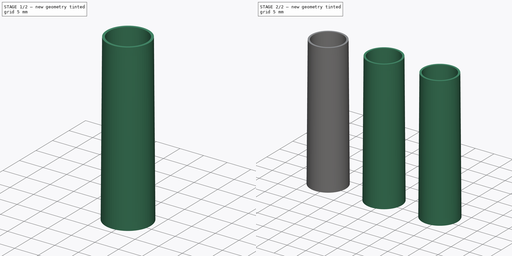
[diagram: build sequence overview — one tinted view per stage of 2, left to right]
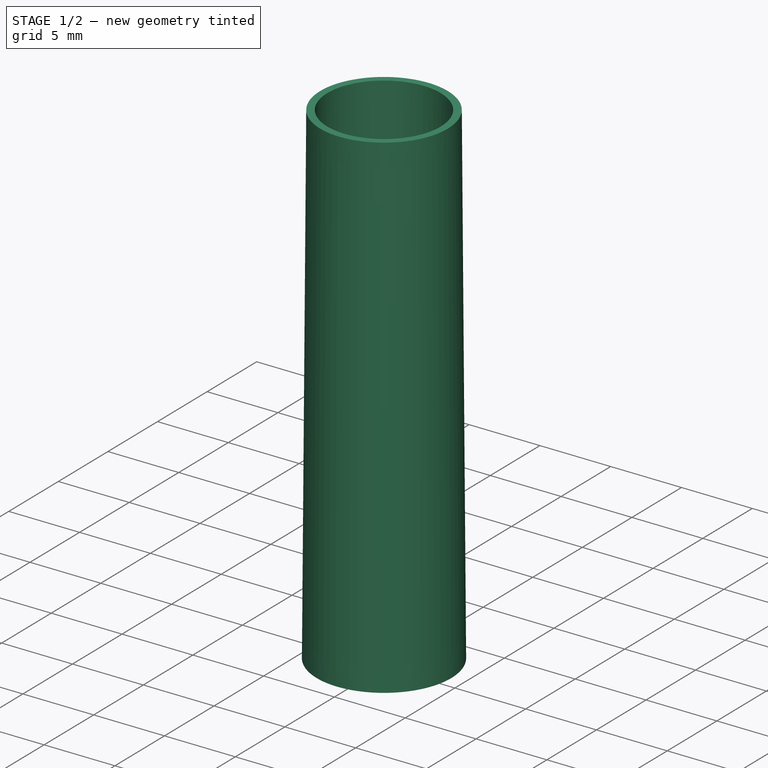
[diagram: stage 1 of 2 — iso view after this stage's code; geometry added in this stage tinted green]
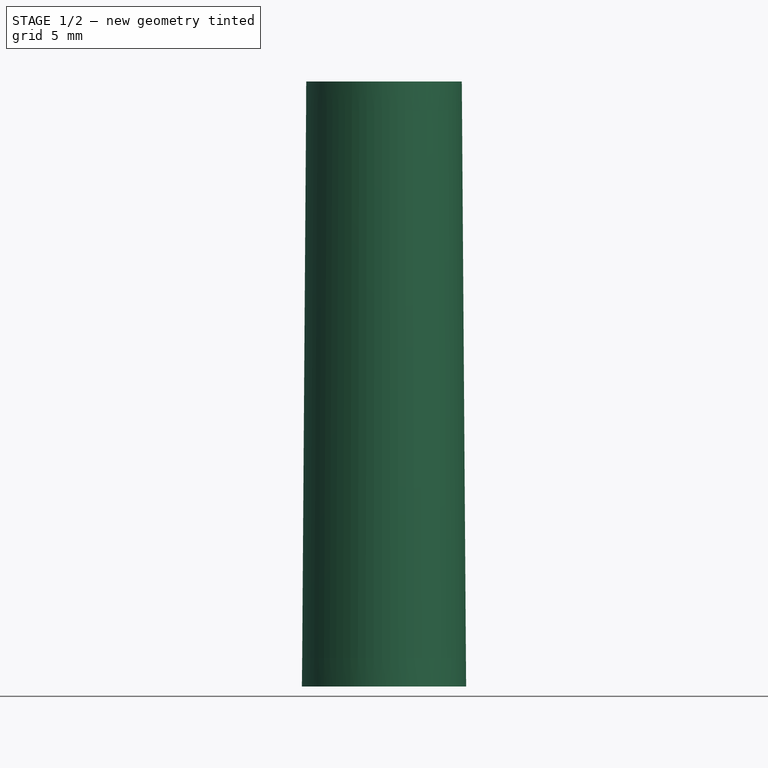
[diagram: stage 1 of 2 — front view after this stage's code; geometry added in this stage tinted green]
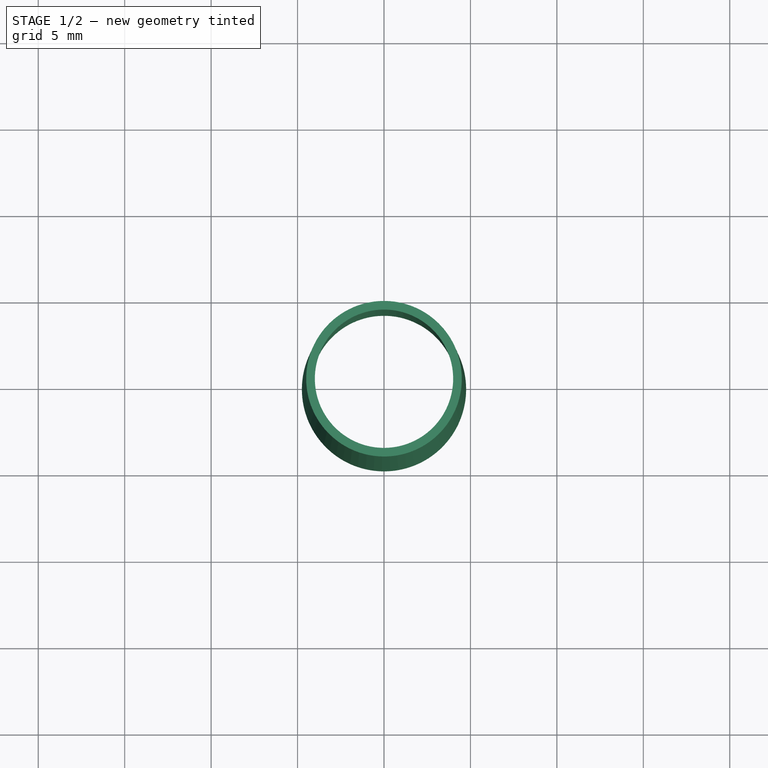
[diagram: stage 1 of 2 — top view after this stage's code; geometry added in this stage tinted green]
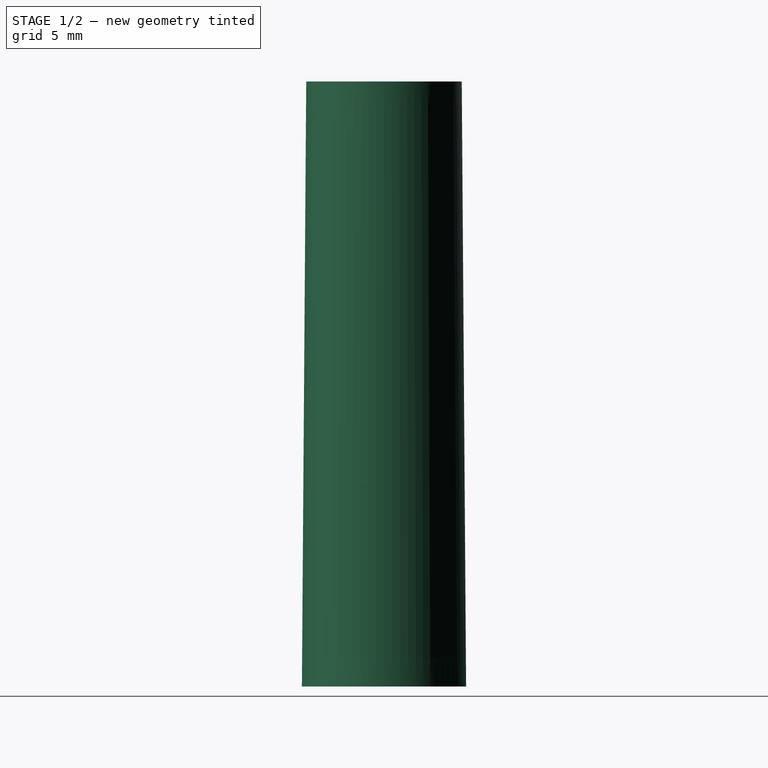
[diagram: stage 1 of 2 — right view after this stage's code; geometry added in this stage tinted green]
FCSTD DOCUMENT  (FreeCAD 1.2R20251119 (Git shallow))
Label: pencil cap
License: All rights reserved
LicenseURL: https://en.wikipedia.org/wiki/All_rights_reserved
objects: Sketcher::SketchObject×2, App::Point×1, PartDesign::AdditiveLoft×1, PartDesign::LinearPattern×1, PartDesign::Body×1
note: 10 computed .brp shape members not serialized (recipe doc carries the construction recipe); baked Part::Feature solids carry a one-line shape summary decoded from their .brp

FEATURE [App::Point] Origin001  label="原点"
  Role = Origin
FEATURE [Sketcher::SketchObject] Sketch
  ArcFitTolerance = 1e-06
  AttachmentSupport = -> [Origin]
  ExternalTypes = [0]
  FullyConstrained = true
  MakeInternals = false
  MapMode = 5
  sketch-geometry (2):
    g0: Circle CenterX=0 CenterY=0 CenterZ=0 NormalX=0 NormalY=0 NormalZ=1 AngleXU=0 Radius=4.75
    g1: Circle CenterX=0 CenterY=0 CenterZ=0 NormalX=0 NormalY=0 NormalZ=1 AngleXU=0 Radius=4.25
  constraints (4):
    c: Coincident(g0,g-1)
    c: Diameter(g0) = 9.5
    c: Coincident(g1,g0)
    c: Diameter(g1) = 8.5
FEATURE [Sketcher::SketchObject] Sketch001
  ArcFitTolerance = 1e-06
  AttachmentOffset = pos=(0,0,35) rot=(0,0,1;0rad)
  AttachmentSupport = -> [Sketch]
  ExternalTypes = [0]
  FullyConstrained = true
  MakeInternals = false
  MapMode = 2
  Placement = pos=(0,0,35) rot=(0,0,1;0rad)
  sketch-geometry (2):
    g0: Circle CenterX=0 CenterY=0 CenterZ=0 NormalX=0 NormalY=0 NormalZ=1 AngleXU=0 Radius=4.5
    g1: Circle CenterX=0 CenterY=0 CenterZ=0 NormalX=0 NormalY=0 NormalZ=1 AngleXU=0 Radius=4
  constraints (4):
    c: Diameter(g0) = 9
    c: Coincident(g0,g-1)
    c: Diameter(g1) = 8
    c: Coincident(g1,g0)
FEATURE [PartDesign::AdditiveLoft] AdditiveLoft
  Closed = false
  Profile = -> Sketch001
  Refine = true
  Ruled = false
  Sections = -> [Sketch]
  Suppressed = false
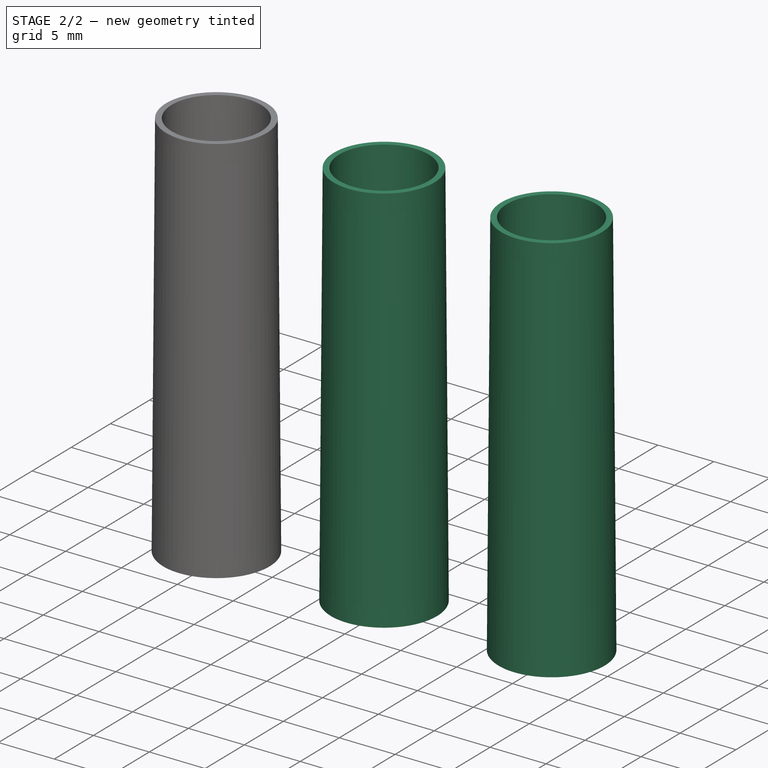
[diagram: stage 2 of 2 — iso view after this stage's code; geometry added in this stage tinted green]
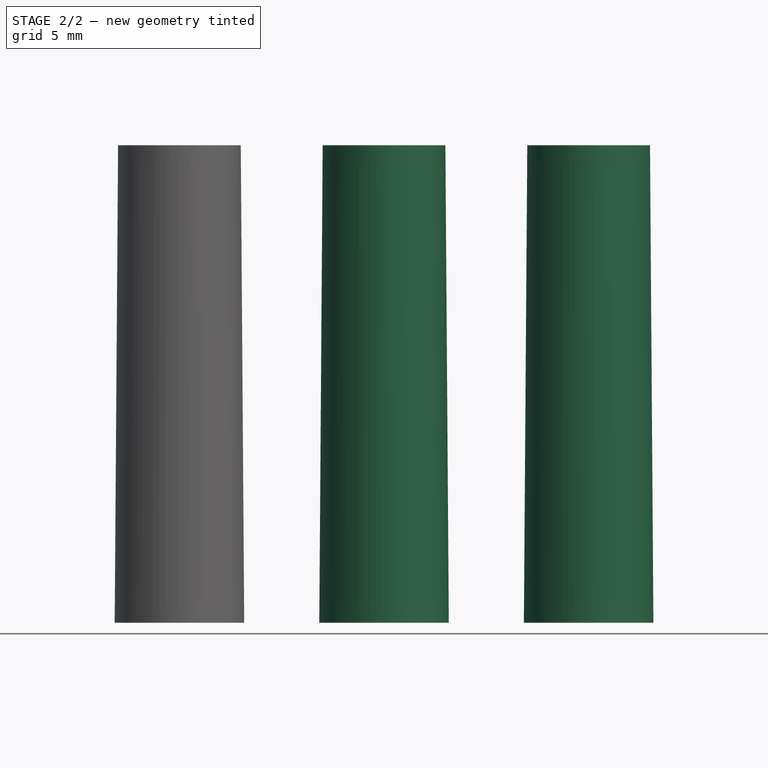
[diagram: stage 2 of 2 — front view after this stage's code; geometry added in this stage tinted green]
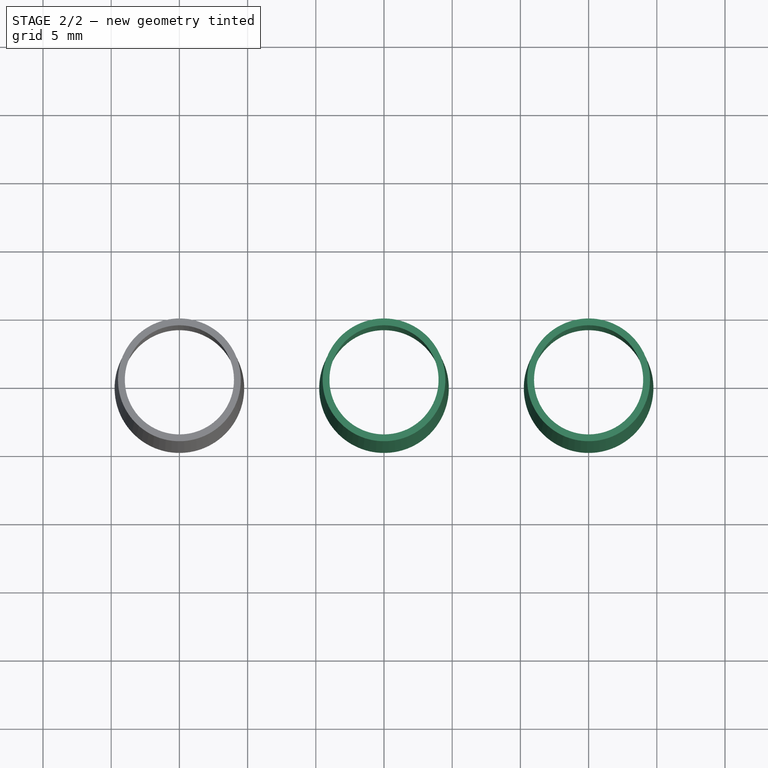
[diagram: stage 2 of 2 — top view after this stage's code; geometry added in this stage tinted green]
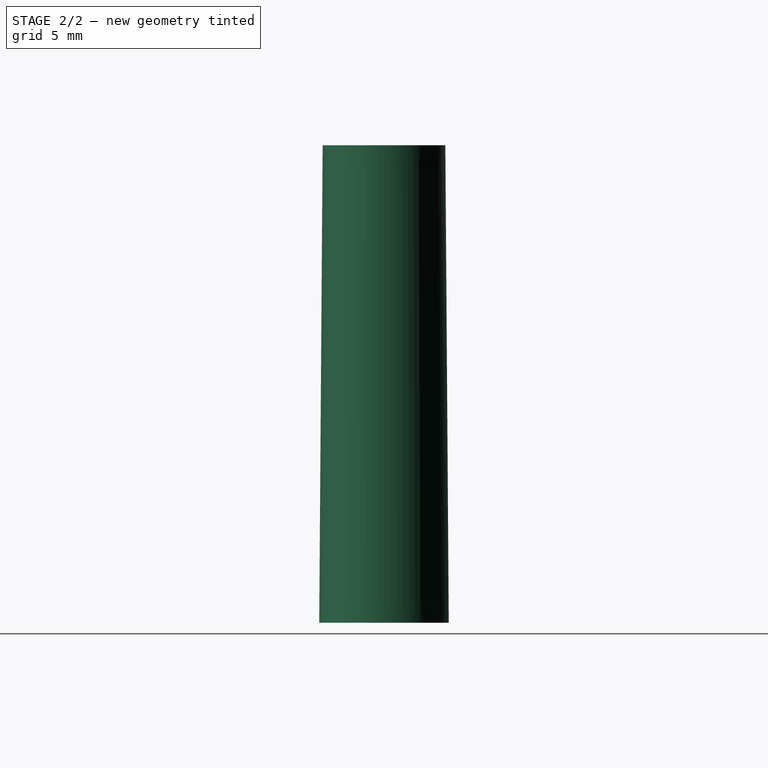
[diagram: stage 2 of 2 — right view after this stage's code; geometry added in this stage tinted green]
FEATURE [PartDesign::LinearPattern] LinearPattern
  BaseFeature = -> AdditiveLoft
  Direction = -> Sketch001 [H_Axis]
  Direction2 = -> Sketch001 [V_Axis]
  Length = 30
  Length2 = 100
  Mode = 0
  Mode2 = 0
  Occurrences = 3
  Occurrences2 = 1
  Offset = 15
  Offset2 = 100
  Originals = -> [AdditiveLoft]
  Refine = true
  Reversed2 = false
  SpacingPattern = [0]
  SpacingPattern2 = [0]
  Spacings = [-1,-1]
  Suppressed = false
  TransformMode = 0
FEATURE [PartDesign::Body] Body
  AllowCompound = true
  Group = -> [Sketch,Sketch001,AdditiveLoft,LinearPattern]
  Origin = -> Origin
  Tip = -> LinearPattern
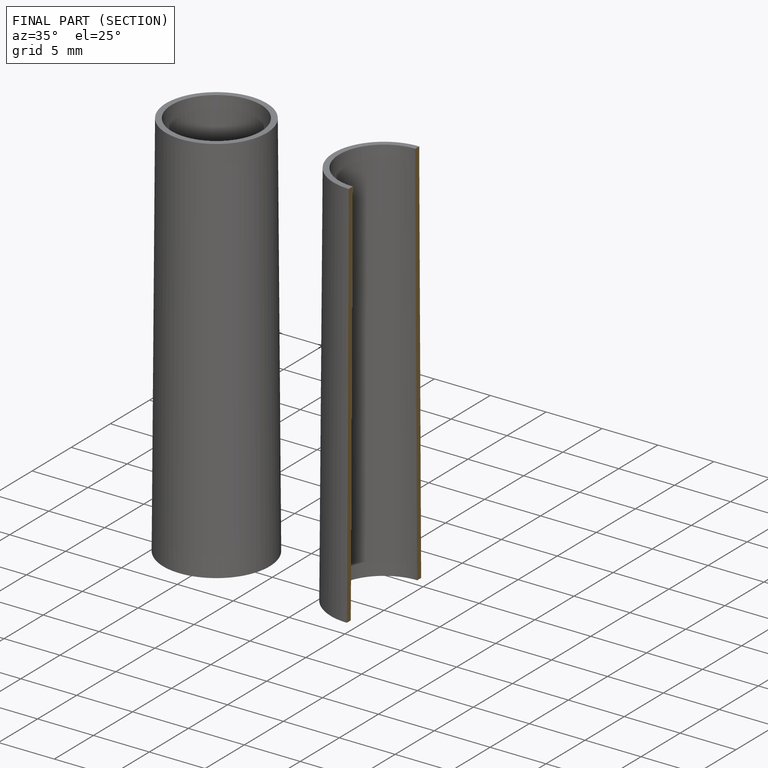
[diagram: finished part — half-section view (interior)]
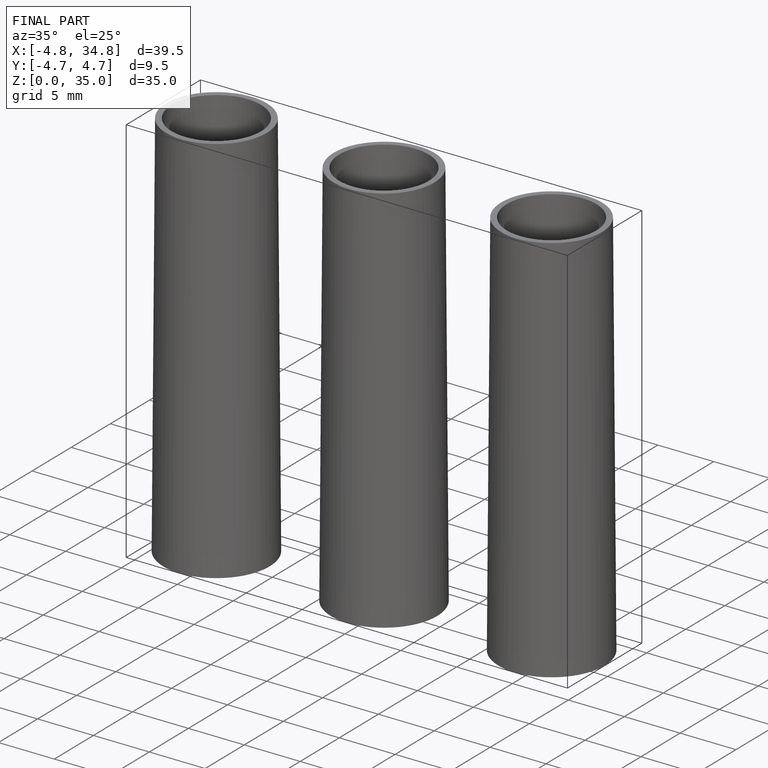
[diagram: finished part — iso view with bounding-box wireframe]
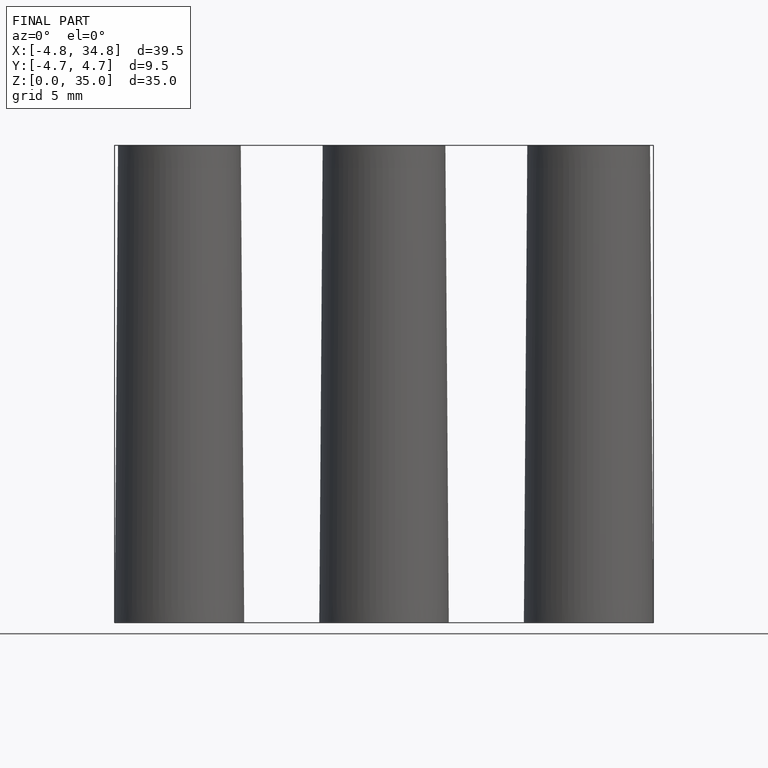
[diagram: finished part — front view with bounding-box wireframe]
